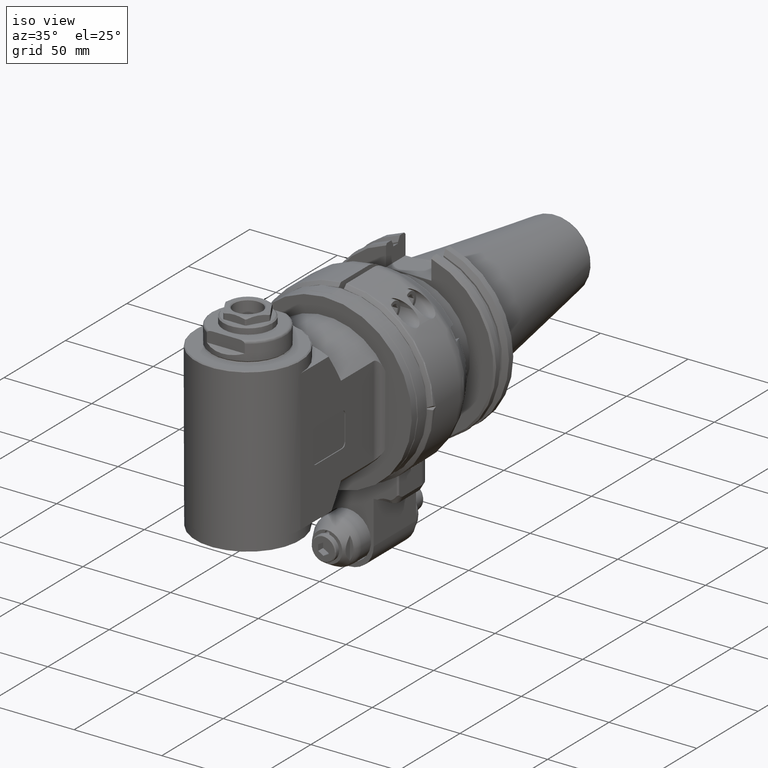
[diagram: clean part render]
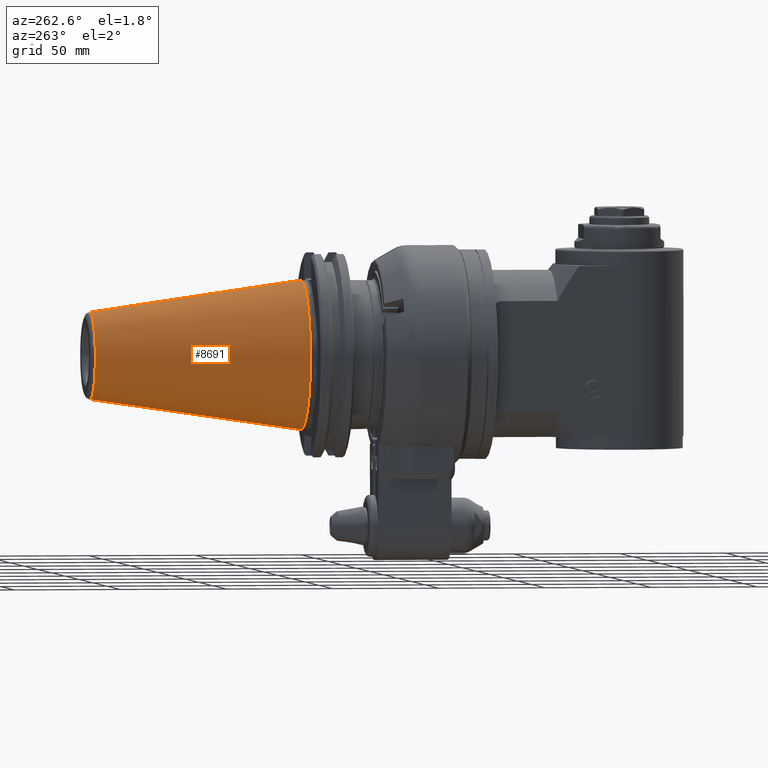
[diagram: tour spotlight — one face highlighted and labeled with its STEP entity id]
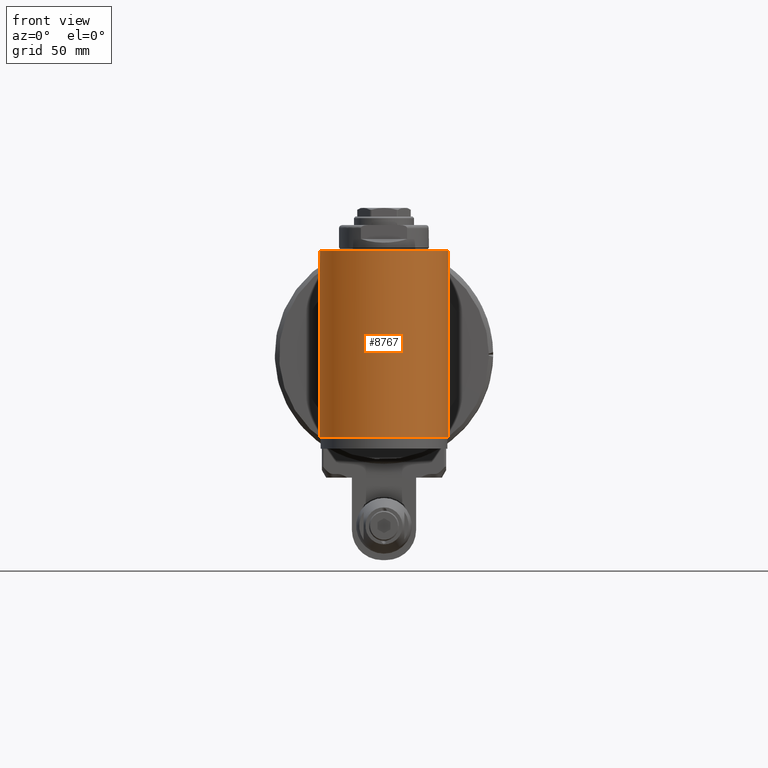
[diagram: tour spotlight — one face highlighted and labeled with its STEP entity id]
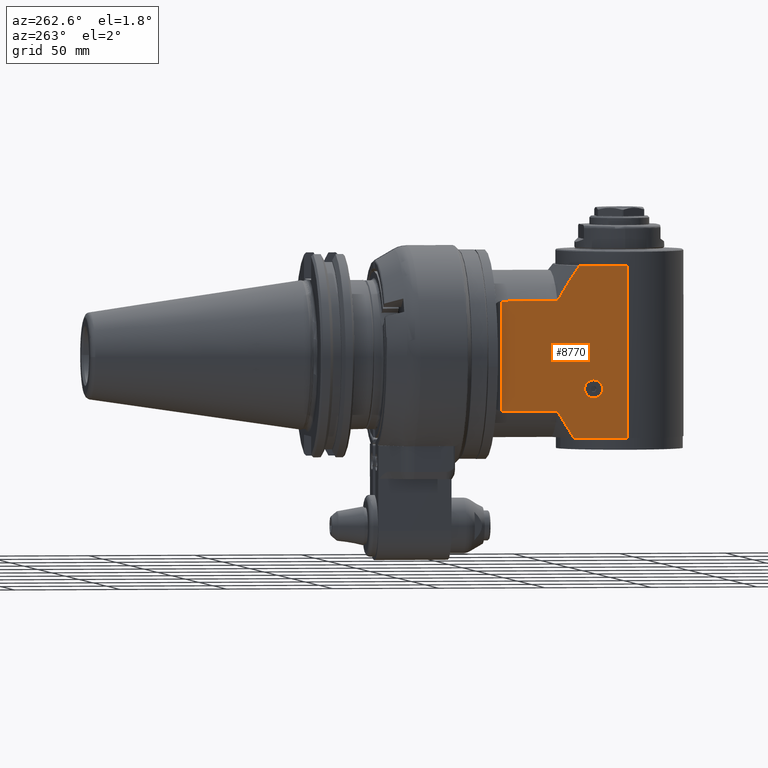
[diagram: tour spotlight — one face highlighted and labeled with its STEP entity id]
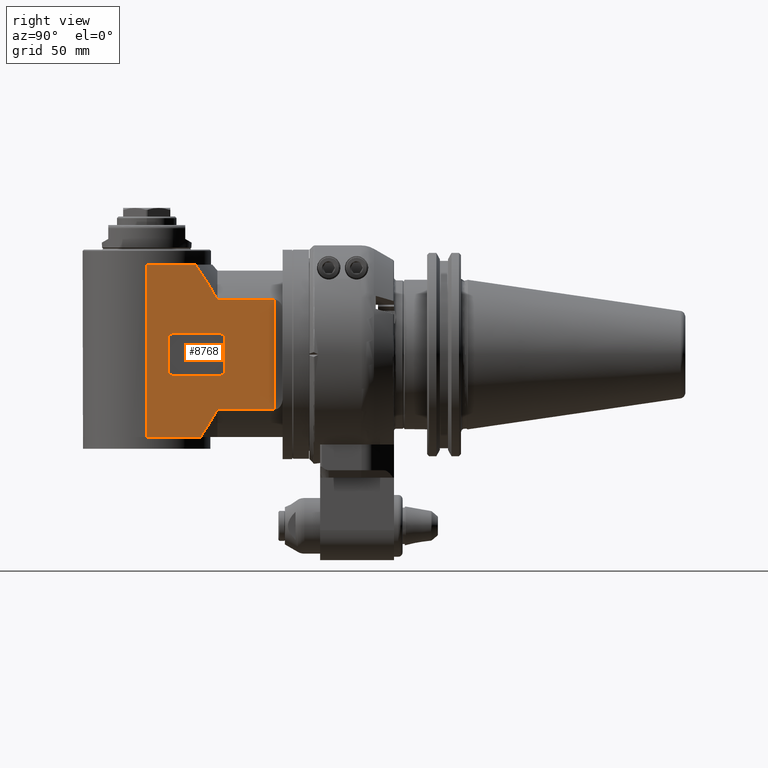
[diagram: tour spotlight — one face highlighted and labeled with its STEP entity id]
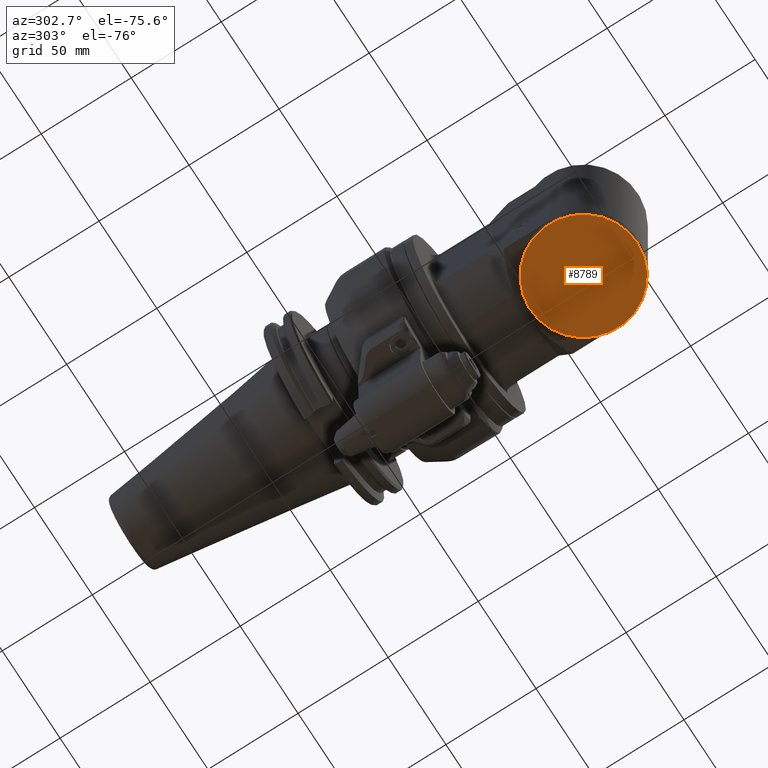
[diagram: tour spotlight — one face highlighted and labeled with its STEP entity id]
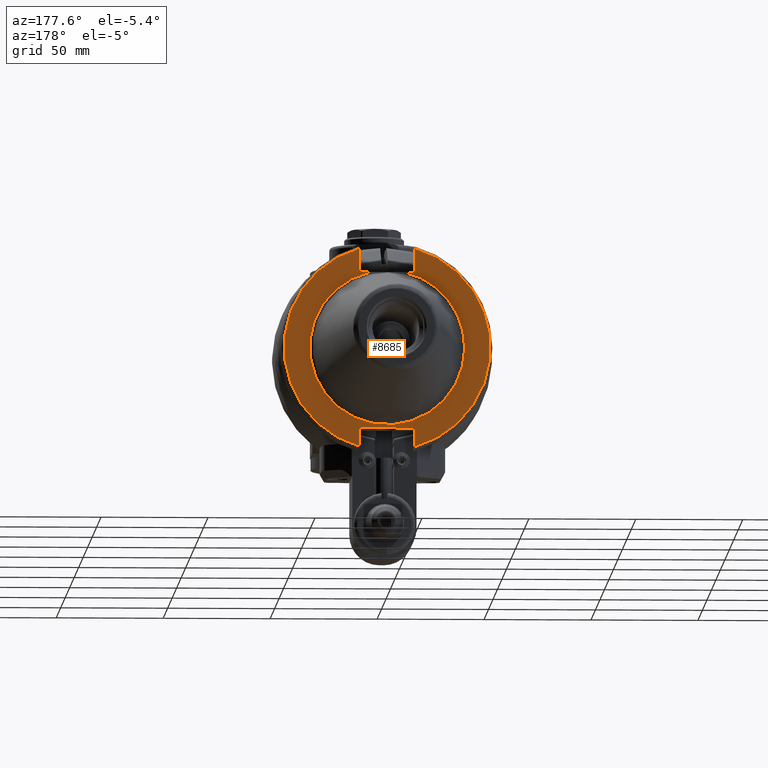
[diagram: tour spotlight — one face highlighted and labeled with its STEP entity id]
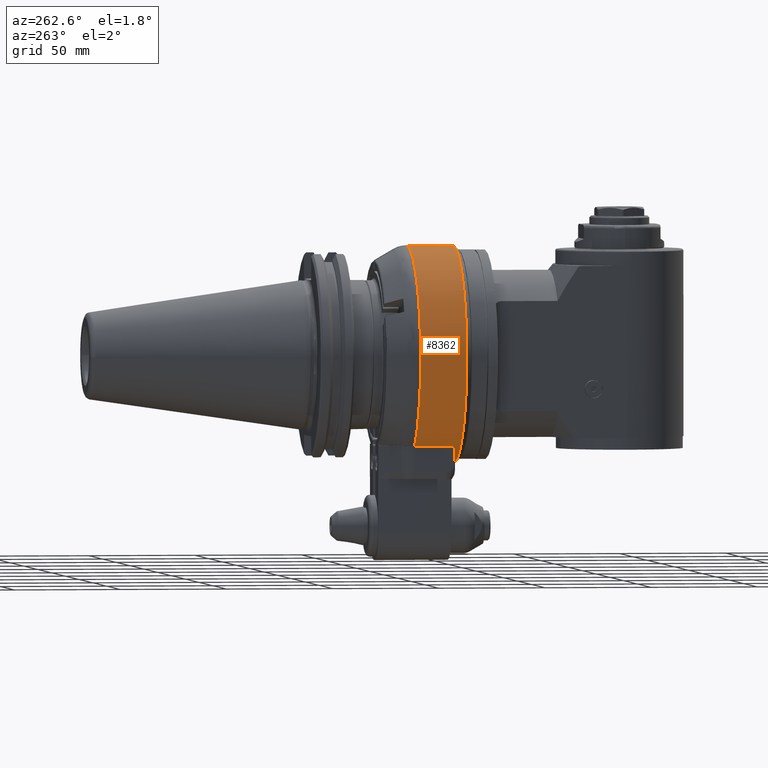
[diagram: tour spotlight — one face highlighted and labeled with its STEP entity id]
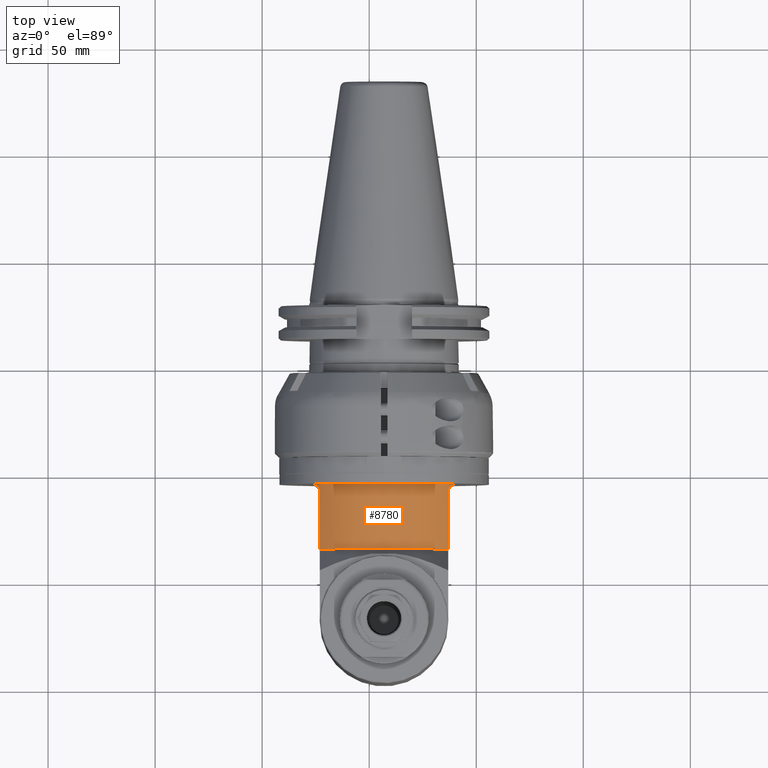
[diagram: tour spotlight — one face highlighted and labeled with its STEP entity id]
A machine part: a face-by-face anatomy tour. The part has 522 B-rep faces; the first image is the clean iso view, then the 8 largest visible faces are spotlighted one at a time (largest first), each with its STEP entity span.

Face 1 — auxiliary view, entity #8691. In plain terms, the highlighted conical surface has half-angle 8.297 deg.
Definition (entity closure, byte-faithful):
#259=CONICAL_SURFACE('',#9658,27.67265681028,0.144812411498922);
#733=LINE('',#16776,#1351);
#1351=VECTOR('',#11882,27.67265681028);
#2353=FACE_OUTER_BOUND('',#2929,.T.);
#2929=EDGE_LOOP('',(#7522,#7523,#7524,#7525,#7526,#7527));
#3491=CIRCLE('',#9656,34.925);
#3492=CIRCLE('',#9657,34.925);
#3493=CIRCLE('',#9659,20.42031362057);
#3494=CIRCLE('',#9660,20.42031362057);
#4231=VERTEX_POINT('',#16769);
#4232=VERTEX_POINT('',#16770);
#4233=VERTEX_POINT('',#16775);
#4234=VERTEX_POINT('',#16777);
#5376=EDGE_CURVE('',#4231,#4232,#3491,.T.);
#5378=EDGE_CURVE('',#4232,#4231,#3492,.T.);
#5379=EDGE_CURVE('',#4231,#4233,#733,.T.);
#5380=EDGE_CURVE('',#4234,#4233,#3493,.T.);
#5381=EDGE_CURVE('',#4233,#4234,#3494,.T.);
#7522=ORIENTED_EDGE('',*,*,#5376,.F.);
#7523=ORIENTED_EDGE('',*,*,#5379,.T.);
#7524=ORIENTED_EDGE('',*,*,#5380,.F.);
#7525=ORIENTED_EDGE('',*,*,#5381,.F.);
#7526=ORIENTED_EDGE('',*,*,#5379,.F.);
#7527=ORIENTED_EDGE('',*,*,#5378,.F.);
#8691=ADVANCED_FACE('',(#2353),#259,.T.);
#9656=AXIS2_PLACEMENT_3D('',#16771,#11875,#11876);
#9657=AXIS2_PLACEMENT_3D('',#16773,#11878,#11879);
#9658=AXIS2_PLACEMENT_3D('',#16774,#11880,#11881);
#9659=AXIS2_PLACEMENT_3D('',#16778,#11883,#11884);
#9660=AXIS2_PLACEMENT_3D('',#16779,#11885,#11886);
#11875=DIRECTION('center_axis',(0.,-1.,0.));
#11876=DIRECTION('ref_axis',(0.,0.,1.));
#11878=DIRECTION('center_axis',(0.,-1.,0.));
#11879=DIRECTION('ref_axis',(0.,0.,1.));
#11880=DIRECTION('center_axis',(0.,-1.,0.));
#11881=DIRECTION('ref_axis',(0.,0.,1.));
#11882=DIRECTION('',(-1.76724869581176E-17,0.98953299358046,0.144306807239621));
#11883=DIRECTION('center_axis',(0.,1.,0.));
#11884=DIRECTION('ref_axis',(0.,0.,1.));
#11885=DIRECTION('center_axis',(0.,1.,0.));
#11886=DIRECTION('ref_axis',(0.,0.,1.));
#16769=CARTESIAN_POINT('',(0.,74.,-34.925));
#16770=CARTESIAN_POINT('',(4.27707894602218E-15,73.9999999999999,34.9250000000004));
#16771=CARTESIAN_POINT('Origin',(0.,74.,0.));
#16773=CARTESIAN_POINT('Origin',(0.,74.,0.));
#16774=CARTESIAN_POINT('Origin',(0.,123.730383509,0.));
#16775=CARTESIAN_POINT('',(2.50076717129998E-15,173.460767018098,-20.4203136205566));
#16776=CARTESIAN_POINT('',(3.38892305866126E-15,123.730383509,-27.67265681028));
#16777=CARTESIAN_POINT('',(-20.42031362057,173.4607670181,-2.50076717130162E-15));
#16778=CARTESIAN_POINT('Origin',(0.,173.4607670181,0.));
#16779=CARTESIAN_POINT('Origin',(0.,173.4607670181,0.));

Face 2 — front view, entity #8767. In plain terms, the highlighted cylindrical surface (bore or boss wall) has radius 30 mm, axis along (0, -0, 1).
Definition (entity closure, byte-faithful):
#810=LINE('',#17431,#1428);
#811=LINE('',#17435,#1429);
#812=LINE('',#17439,#1430);
#1428=VECTOR('',#12197,30.);
#1429=VECTOR('',#12200,80.5);
#1430=VECTOR('',#12203,80.5);
#1642=CYLINDRICAL_SURFACE('',#9775,30.);
#2429=FACE_OUTER_BOUND('',#3011,.T.);
#3011=EDGE_LOOP('',(#7872,#7873,#7874,#7875,#7876,#7877,#7878,#7879,#7880));
#3533=CIRCLE('',#9776,30.);
#3534=CIRCLE('',#9777,30.);
#3535=CIRCLE('',#9778,30.);
#3536=CIRCLE('',#9779,30.);
#3537=CIRCLE('',#9780,30.);
#4312=VERTEX_POINT('',#17426);
#4313=VERTEX_POINT('',#17427);
#4314=VERTEX_POINT('',#17430);
#4315=VERTEX_POINT('',#17432);
#4316=VERTEX_POINT('',#17434);
#4317=VERTEX_POINT('',#17436);
#4318=VERTEX_POINT('',#17438);
#5520=EDGE_CURVE('',#4312,#4313,#3533,.T.);
#5521=EDGE_CURVE('',#4313,#4312,#3534,.T.);
#5522=EDGE_CURVE('',#4313,#4314,#810,.T.);
#5523=EDGE_CURVE('',#4315,#4314,#3535,.T.);
#5524=EDGE_CURVE('',#4316,#4315,#811,.T.);
#5525=EDGE_CURVE('',#4317,#4316,#3536,.T.);
#5526=EDGE_CURVE('',#4318,#4317,#812,.T.);
#5527=EDGE_CURVE('',#4314,#4318,#3537,.T.);
#7872=ORIENTED_EDGE('',*,*,#5520,.F.);
#7873=ORIENTED_EDGE('',*,*,#5521,.F.);
#7874=ORIENTED_EDGE('',*,*,#5522,.T.);
#7875=ORIENTED_EDGE('',*,*,#5523,.F.);
#7876=ORIENTED_EDGE('',*,*,#5524,.F.);
#7877=ORIENTED_EDGE('',*,*,#5525,.F.);
#7878=ORIENTED_EDGE('',*,*,#5526,.F.);
#7879=ORIENTED_EDGE('',*,*,#5527,.F.);
#7880=ORIENTED_EDGE('',*,*,#5522,.F.);
#8767=ADVANCED_FACE('',(#2429),#1642,.T.);
#9775=AXIS2_PLACEMENT_3D('',#17425,#12191,#12192);
#9776=AXIS2_PLACEMENT_3D('',#17428,#12193,#12194);
#9777=AXIS2_PLACEMENT_3D('',#17429,#12195,#12196);
#9778=AXIS2_PLACEMENT_3D('',#17433,#12198,#12199);
#9779=AXIS2_PLACEMENT_3D('',#17437,#12201,#12202);
#9780=AXIS2_PLACEMENT_3D('',#17440,#12204,#12205);
#12191=DIRECTION('center_axis',(1.,0.,0.));
#12192=DIRECTION('ref_axis',(0.,-1.,0.));
#12193=DIRECTION('center_axis',(1.,0.,0.));
#12194=DIRECTION('ref_axis',(0.,-0.500000000000017,-0.866025403784429));
#12195=DIRECTION('center_axis',(1.,0.,0.));
#12196=DIRECTION('ref_axis',(0.,-0.500000000000017,-0.866025403784429));
#12197=DIRECTION('',(-1.,0.,0.));
#12198=DIRECTION('center_axis',(-1.,0.,0.));
#12199=DIRECTION('ref_axis',(0.,5.104065318543E-14,1.));
#12200=DIRECTION('',(1.,0.,0.));
#12201=DIRECTION('center_axis',(-1.,0.,0.));
#12202=DIRECTION('ref_axis',(0.,0.,-1.));
#12203=DIRECTION('',(-1.,0.,0.));
#12204=DIRECTION('center_axis',(-1.,0.,0.));
#12205=DIRECTION('ref_axis',(0.,5.104065318543E-14,1.));
#17425=CARTESIAN_POINT('Origin',(0.,-23.,-1.136868377216E-13));
#17426=CARTESIAN_POINT('',(37.66004178792,-38.,-25.98076211353));
#17427=CARTESIAN_POINT('',(37.66004178792,7.,-1.10012897324158E-13));
#17428=CARTESIAN_POINT('Origin',(37.66004178792,-23.,-1.136868377216E-13));
#17429=CARTESIAN_POINT('Origin',(37.66004178792,-23.,-1.136868377216E-13));
#17430=CARTESIAN_POINT('',(31.16004178792,7.,-1.10012897324158E-13));
#17431=CARTESIAN_POINT('',(0.,7.,-1.10012897324158E-13));
#17432=CARTESIAN_POINT('',(31.16004178792,-23.,30.));
#17433=CARTESIAN_POINT('Origin',(31.16004178792,-23.,-1.136868377216E-13));
#17434=CARTESIAN_POINT('',(-49.33995821208,-23.,30.));
#17435=CARTESIAN_POINT('',(-49.33995821208,-23.,30.));
#17436=CARTESIAN_POINT('',(-49.33995821208,-23.,-30.));
#17437=CARTESIAN_POINT('Origin',(-49.33995821208,-23.,-1.136868377216E-13));
#17438=CARTESIAN_POINT('',(31.16004178792,-23.,-30.));
#17439=CARTESIAN_POINT('',(31.16004178792,-23.,-30.));
#17440=CARTESIAN_POINT('Origin',(31.16004178792,-23.,-1.136868377216E-13));

Face 3 — auxiliary view, entity #8770. In plain terms, the highlighted planar face has unit normal (1, 0, -0).
Definition (entity closure, byte-faithful):
#185=(
BOUNDED_CURVE()
B_SPLINE_CURVE(2,(#17483,#17484,#17485),.UNSPECIFIED.,.F.,.F.)
B_SPLINE_CURVE_WITH_KNOTS((3,3),(13.1968686512931,15.0285338596581),
 .UNSPECIFIED.)
CURVE()
GEOMETRIC_REPRESENTATION_ITEM()
RATIONAL_B_SPLINE_CURVE((1.58301614602027,1.4847826910311,1.34804919977888))
REPRESENTATION_ITEM('')
);
#186=(
BOUNDED_CURVE()
B_SPLINE_CURVE(2,(#17493,#17494,#17495),.UNSPECIFIED.,.F.,.F.)
B_SPLINE_CURVE_WITH_KNOTS((3,3),(-3.84982281623053,-2.34796476648751),
 .UNSPECIFIED.)
CURVE()
GEOMETRIC_REPRESENTATION_ITEM()
RATIONAL_B_SPLINE_CURVE((1.58301614602022,1.50247047399687,1.39604108041382))
REPRESENTATION_ITEM('')
);
#811=LINE('',#17435,#1429);
#822=LINE('',#17480,#1440);
#823=LINE('',#17487,#1441);
#824=LINE('',#17489,#1442);
#825=LINE('',#17491,#1443);
#826=LINE('',#17496,#1444);
#1429=VECTOR('',#12200,80.5);
#1440=VECTOR('',#12227,22.83518767845);
#1441=VECTOR('',#12230,26.5);
#1442=VECTOR('',#12231,51.39066063012);
#1443=VECTOR('',#12232,26.5);
#1444=VECTOR('',#12233,25.18941018295);
#1733=FACE_BOUND('',#3016,.T.);
#1961=PLANE('',#9787);
#2432=FACE_OUTER_BOUND('',#3015,.T.);
#3015=EDGE_LOOP('',(#7902,#7903,#7904,#7905,#7906,#7907,#7908,#7909));
#3016=EDGE_LOOP('',(#7910));
#3542=CIRCLE('',#9788,4.25);
#4315=VERTEX_POINT('',#17432);
#4316=VERTEX_POINT('',#17434);
#4333=VERTEX_POINT('',#17476);
#4334=VERTEX_POINT('',#17482);
#4335=VERTEX_POINT('',#17486);
#4336=VERTEX_POINT('',#17488);
#4337=VERTEX_POINT('',#17490);
#4338=VERTEX_POINT('',#17492);
#4339=VERTEX_POINT('',#17497);
#5524=EDGE_CURVE('',#4316,#4315,#811,.T.);
#5544=EDGE_CURVE('',#4315,#4333,#822,.T.);
#5545=EDGE_CURVE('',#4334,#4333,#185,.T.);
#5546=EDGE_CURVE('',#4335,#4334,#823,.T.);
#5547=EDGE_CURVE('',#4336,#4335,#824,.T.);
#5548=EDGE_CURVE('',#4337,#4336,#825,.T.);
#5549=EDGE_CURVE('',#4337,#4338,#186,.T.);
#5550=EDGE_CURVE('',#4316,#4338,#826,.T.);
#5551=EDGE_CURVE('',#4339,#4339,#3542,.T.);
#7902=ORIENTED_EDGE('',*,*,#5524,.T.);
#7903=ORIENTED_EDGE('',*,*,#5544,.T.);
#7904=ORIENTED_EDGE('',*,*,#5545,.F.);
#7905=ORIENTED_EDGE('',*,*,#5546,.F.);
#7906=ORIENTED_EDGE('',*,*,#5547,.F.);
#7907=ORIENTED_EDGE('',*,*,#5548,.F.);
#7908=ORIENTED_EDGE('',*,*,#5549,.T.);
#7909=ORIENTED_EDGE('',*,*,#5550,.F.);
#7910=ORIENTED_EDGE('',*,*,#5551,.T.);
#8770=ADVANCED_FACE('',(#2432,#1733),#1961,.F.);
#9787=AXIS2_PLACEMENT_3D('',#17481,#12228,#12229);
#9788=AXIS2_PLACEMENT_3D('',#17498,#12234,#12235);
#12200=DIRECTION('',(1.,0.,0.));
#12227=DIRECTION('',(0.,1.,0.));
#12228=DIRECTION('center_axis',(0.,0.,-1.));
#12229=DIRECTION('ref_axis',(0.,-1.,0.));
#12230=DIRECTION('',(0.,-1.,0.));
#12231=DIRECTION('',(1.,0.,0.));
#12232=DIRECTION('',(0.,1.,0.));
#12233=DIRECTION('',(0.,1.,0.));
#12234=DIRECTION('center_axis',(0.,0.,-1.));
#12235=DIRECTION('ref_axis',(1.,0.,0.));
#17432=CARTESIAN_POINT('',(31.16004178792,-23.,30.));
#17434=CARTESIAN_POINT('',(-49.33995821208,-23.,30.));
#17435=CARTESIAN_POINT('',(-49.33995821208,-23.,30.));
#17476=CARTESIAN_POINT('',(31.16004178792,-0.164812321552,30.));
#17480=CARTESIAN_POINT('',(31.16004178792,-23.,30.));
#17481=CARTESIAN_POINT('Origin',(-72.98996061208,-4.318245836552,30.));
#17482=CARTESIAN_POINT('',(14.85537210298,10.,30.));
#17483=CARTESIAN_POINT('Ctrl Pts',(14.8553721027819,10.0000000001096,30.));
#17484=CARTESIAN_POINT('Ctrl Pts',(21.9238225567032,6.14171008589091,30.));
#17485=CARTESIAN_POINT('Ctrl Pts',(31.1600417879129,-0.164812321545501,
30.));
#17486=CARTESIAN_POINT('',(14.85537210298,36.5,30.));
#17487=CARTESIAN_POINT('',(14.85537210298,36.5,30.));
#17488=CARTESIAN_POINT('',(-36.53528852714,36.5,30.));
#17489=CARTESIAN_POINT('',(-36.53528852714,36.5,30.));
#17490=CARTESIAN_POINT('',(-36.53528852714,10.,30.));
#17491=CARTESIAN_POINT('',(-36.53528852714,10.,30.));
#17492=CARTESIAN_POINT('',(-49.3399582120614,2.18941018313255,29.9999999996697));
#17493=CARTESIAN_POINT('Ctrl Pts',(-36.5352885269399,10.000000000106,30.));
#17494=CARTESIAN_POINT('Ctrl Pts',(-42.2627735005611,6.87367158461836,30.));
#17495=CARTESIAN_POINT('Ctrl Pts',(-49.3399582120243,2.18941018298573,30.));
#17496=CARTESIAN_POINT('',(-49.33995821208,-23.,30.));
#17497=CARTESIAN_POINT('',(-30.58995821208,-7.,30.));
#17498=CARTESIAN_POINT('Origin',(-26.33995821208,-7.,30.));

Face 4 — right view, entity #8768. In plain terms, the highlighted planar face has unit normal (-1, -0, 0).
Definition (entity closure, byte-faithful):
#182=(
BOUNDED_CURVE()
B_SPLINE_CURVE(2,(#17445,#17446,#17447),.UNSPECIFIED.,.F.,.F.)
B_SPLINE_CURVE_WITH_KNOTS((3,3),(13.1968686512931,14.6987267010382),
 .UNSPECIFIED.)
CURVE()
GEOMETRIC_REPRESENTATION_ITEM()
RATIONAL_B_SPLINE_CURVE((1.58301614602027,1.50247047399681,1.39604108041358))
REPRESENTATION_ITEM('')
);
#183=(
BOUNDED_CURVE()
B_SPLINE_CURVE(2,(#17455,#17456,#17457),.UNSPECIFIED.,.F.,.F.)
B_SPLINE_CURVE_WITH_KNOTS((3,3),(2.01815760786574,3.84982281623074),
 .UNSPECIFIED.)
CURVE()
GEOMETRIC_REPRESENTATION_ITEM()
RATIONAL_B_SPLINE_CURVE((1.34804919977888,1.4847826910311,1.58301614602027))
REPRESENTATION_ITEM('')
);
#812=LINE('',#17439,#1430);
#813=LINE('',#17443,#1431);
#814=LINE('',#17449,#1432);
#815=LINE('',#17451,#1433);
#816=LINE('',#17453,#1434);
#817=LINE('',#17458,#1435);
#818=LINE('',#17461,#1436);
#819=LINE('',#17465,#1437);
#820=LINE('',#17469,#1438);
#821=LINE('',#17473,#1439);
#1430=VECTOR('',#12203,80.5);
#1431=VECTOR('',#12208,25.18941018294);
#1432=VECTOR('',#12209,26.5);
#1433=VECTOR('',#12210,51.39066063012);
#1434=VECTOR('',#12211,26.5);
#1435=VECTOR('',#12212,22.83518767845);
#1436=VECTOR('',#12213,21.5);
#1437=VECTOR('',#12216,14.5);
#1438=VECTOR('',#12219,21.5);
#1439=VECTOR('',#12222,14.5);
#1732=FACE_BOUND('',#3013,.T.);
#1959=PLANE('',#9781);
#2430=FACE_OUTER_BOUND('',#3012,.T.);
#3012=EDGE_LOOP('',(#7881,#7882,#7883,#7884,#7885,#7886,#7887,#7888));
#3013=EDGE_LOOP('',(#7889,#7890,#7891,#7892,#7893,#7894,#7895,#7896));
#3538=CIRCLE('',#9782,2.5);
#3539=CIRCLE('',#9783,2.5);
#3540=CIRCLE('',#9784,2.5);
#3541=CIRCLE('',#9785,2.5);
#4317=VERTEX_POINT('',#17436);
#4318=VERTEX_POINT('',#17438);
#4319=VERTEX_POINT('',#17442);
#4320=VERTEX_POINT('',#17444);
#4321=VERTEX_POINT('',#17448);
#4322=VERTEX_POINT('',#17450);
#4323=VERTEX_POINT('',#17452);
#4324=VERTEX_POINT('',#17454);
#4325=VERTEX_POINT('',#17459);
#4326=VERTEX_POINT('',#17460);
#4327=VERTEX_POINT('',#17462);
#4328=VERTEX_POINT('',#17464);
#4329=VERTEX_POINT('',#17466);
#4330=VERTEX_POINT('',#17468);
#4331=VERTEX_POINT('',#17470);
#4332=VERTEX_POINT('',#17472);
#5526=EDGE_CURVE('',#4318,#4317,#812,.T.);
#5528=EDGE_CURVE('',#4319,#4317,#813,.T.);
#5529=EDGE_CURVE('',#4320,#4319,#182,.T.);
#5530=EDGE_CURVE('',#4321,#4320,#814,.T.);
#5531=EDGE_CURVE('',#4322,#4321,#815,.T.);
#5532=EDGE_CURVE('',#4323,#4322,#816,.T.);
#5533=EDGE_CURVE('',#4324,#4323,#183,.T.);
#5534=EDGE_CURVE('',#4318,#4324,#817,.T.);
#5535=EDGE_CURVE('',#4325,#4326,#818,.T.);
#5536=EDGE_CURVE('',#4326,#4327,#3538,.T.);
#5537=EDGE_CURVE('',#4327,#4328,#819,.T.);
#5538=EDGE_CURVE('',#4328,#4329,#3539,.T.);
#5539=EDGE_CURVE('',#4329,#4330,#820,.T.);
#5540=EDGE_CURVE('',#4330,#4331,#3540,.T.);
#5541=EDGE_CURVE('',#4331,#4332,#821,.T.);
#5542=EDGE_CURVE('',#4332,#4325,#3541,.T.);
#7881=ORIENTED_EDGE('',*,*,#5526,.T.);
#7882=ORIENTED_EDGE('',*,*,#5528,.F.);
#7883=ORIENTED_EDGE('',*,*,#5529,.F.);
#7884=ORIENTED_EDGE('',*,*,#5530,.F.);
#7885=ORIENTED_EDGE('',*,*,#5531,.F.);
#7886=ORIENTED_EDGE('',*,*,#5532,.F.);
#7887=ORIENTED_EDGE('',*,*,#5533,.F.);
#7888=ORIENTED_EDGE('',*,*,#5534,.F.);
#7889=ORIENTED_EDGE('',*,*,#5535,.T.);
#7890=ORIENTED_EDGE('',*,*,#5536,.T.);
#7891=ORIENTED_EDGE('',*,*,#5537,.T.);
#7892=ORIENTED_EDGE('',*,*,#5538,.T.);
#7893=ORIENTED_EDGE('',*,*,#5539,.T.);
#7894=ORIENTED_EDGE('',*,*,#5540,.T.);
#7895=ORIENTED_EDGE('',*,*,#5541,.T.);
#7896=ORIENTED_EDGE('',*,*,#5542,.T.);
#8768=ADVANCED_FACE('',(#2430,#1732),#1959,.F.);
#9781=AXIS2_PLACEMENT_3D('',#17441,#12206,#12207);
#9782=AXIS2_PLACEMENT_3D('',#17463,#12214,#12215);
#9783=AXIS2_PLACEMENT_3D('',#17467,#12217,#12218);
#9784=AXIS2_PLACEMENT_3D('',#17471,#12220,#12221);
#9785=AXIS2_PLACEMENT_3D('',#17474,#12223,#12224);
#12203=DIRECTION('',(-1.,0.,0.));
#12206=DIRECTION('center_axis',(0.,0.,1.));
#12207=DIRECTION('ref_axis',(0.,1.,0.));
#12208=DIRECTION('',(5.641598835382E-13,-1.,-1.008435791825E-13));
#12209=DIRECTION('',(0.,-1.,0.));
#12210=DIRECTION('',(-1.,0.,0.));
#12211=DIRECTION('',(0.,1.,0.));
#12212=DIRECTION('',(0.,1.,0.));
#12213=DIRECTION('',(0.,-1.,0.));
#12214=DIRECTION('center_axis',(0.,0.,1.));
#12215=DIRECTION('ref_axis',(-1.,0.,0.));
#12216=DIRECTION('',(1.,0.,0.));
#12217=DIRECTION('center_axis',(0.,0.,1.));
#12218=DIRECTION('ref_axis',(0.,-1.,0.));
#12219=DIRECTION('',(0.,1.,0.));
#12220=DIRECTION('center_axis',(0.,0.,1.));
#12221=DIRECTION('ref_axis',(1.,0.,0.));
#12222=DIRECTION('',(-1.,0.,0.));
#12223=DIRECTION('center_axis',(0.,0.,1.));
#12224=DIRECTION('ref_axis',(0.,1.,0.));
#17436=CARTESIAN_POINT('',(-49.33995821208,-23.,-30.));
#17438=CARTESIAN_POINT('',(31.16004178792,-23.,-30.));
#17439=CARTESIAN_POINT('',(31.16004178792,-23.,-30.));
#17441=CARTESIAN_POINT('Origin',(-72.98996061208,-61.31824583655,-30.));
#17442=CARTESIAN_POINT('',(-49.3399582121,2.189410182937,-30.));
#17443=CARTESIAN_POINT('',(-49.3399582121,2.189410182937,-30.));
#17444=CARTESIAN_POINT('',(-36.53528852714,10.,-30.));
#17445=CARTESIAN_POINT('Ctrl Pts',(-36.5352885269419,10.0000000001097,-30.));
#17446=CARTESIAN_POINT('Ctrl Pts',(-42.2627735005714,6.87367158461736,-30.));
#17447=CARTESIAN_POINT('Ctrl Pts',(-49.3399582120473,2.18941018297527,-30.));
#17448=CARTESIAN_POINT('',(-36.53528852714,36.5,-30.));
#17449=CARTESIAN_POINT('',(-36.53528852714,36.5,-30.));
#17450=CARTESIAN_POINT('',(14.85537210298,36.5,-30.));
#17451=CARTESIAN_POINT('',(14.85537210298,36.5,-30.));
#17452=CARTESIAN_POINT('',(14.85537210298,10.,-30.));
#17453=CARTESIAN_POINT('',(14.85537210298,10.,-30.));
#17454=CARTESIAN_POINT('',(31.16004178792,-0.164812321552,-30.));
#17455=CARTESIAN_POINT('Ctrl Pts',(31.1600417879129,-0.164812321545516,
-30.));
#17456=CARTESIAN_POINT('Ctrl Pts',(21.9238225567032,6.14171008589093,-30.));
#17457=CARTESIAN_POINT('Ctrl Pts',(14.8553721027819,10.0000000001096,-30.));
#17458=CARTESIAN_POINT('',(31.16004178792,-23.,-30.));
#17459=CARTESIAN_POINT('',(-20.58995821208,11.,-30.));
#17460=CARTESIAN_POINT('',(-20.58995821208,-10.5,-30.));
#17461=CARTESIAN_POINT('',(-20.58995821208,11.,-30.));
#17462=CARTESIAN_POINT('',(-18.08995821208,-13.,-30.));
#17463=CARTESIAN_POINT('Origin',(-18.08995821208,-10.5,-30.));
#17464=CARTESIAN_POINT('',(-3.589958212082,-13.,-30.));
#17465=CARTESIAN_POINT('',(-18.08995821208,-13.,-30.));
#17466=CARTESIAN_POINT('',(-1.089958212082,-10.5,-30.));
#17467=CARTESIAN_POINT('Origin',(-3.589958212082,-10.5,-30.));
#17468=CARTESIAN_POINT('',(-1.089958212082,11.,-30.));
#17469=CARTESIAN_POINT('',(-1.089958212082,-10.5,-30.));
#17470=CARTESIAN_POINT('',(-3.589958212082,13.5,-30.));
#17471=CARTESIAN_POINT('Origin',(-3.589958212082,11.,-30.));
#17472=CARTESIAN_POINT('',(-18.08995821208,13.5,-30.));
#17473=CARTESIAN_POINT('',(-3.589958212082,13.5,-30.));
#17474=CARTESIAN_POINT('Origin',(-18.08995821208,11.,-30.));

Face 5 — auxiliary view, entity #8789. In plain terms, the highlighted planar face has unit normal (0, -0, 1).
Definition (entity closure, byte-faithful):
#1967=PLANE('',#9822);
#2451=FACE_OUTER_BOUND('',#3039,.T.);
#3039=EDGE_LOOP('',(#7986));
#3557=CIRCLE('',#9821,29.75);
#4356=VERTEX_POINT('',#17610);
#5582=EDGE_CURVE('',#4356,#4356,#3557,.T.);
#7986=ORIENTED_EDGE('',*,*,#5582,.T.);
#8789=ADVANCED_FACE('',(#2451),#1967,.F.);
#9821=AXIS2_PLACEMENT_3D('',#17612,#12310,#12311);
#9822=AXIS2_PLACEMENT_3D('',#17613,#12312,#12313);
#12310=DIRECTION('center_axis',(-1.,0.,0.));
#12311=DIRECTION('ref_axis',(0.,-0.965925826289076,-0.258819045102493));
#12312=DIRECTION('center_axis',(1.,0.,0.));
#12313=DIRECTION('ref_axis',(0.,-0.965925826289076,-0.258819045102493));
#17610=CARTESIAN_POINT('',(-54.83995821208,5.7362933321,7.69986659179918));
#17612=CARTESIAN_POINT('Origin',(-54.83995821208,-23.,0.));
#17613=CARTESIAN_POINT('Origin',(-54.83995821208,-37.48888739434,-3.882285676538));

Face 6 — auxiliary view, entity #8685. In plain terms, the highlighted planar face has unit normal (0, -1, 0).
Definition (entity closure, byte-faithful):
#717=LINE('',#16685,#1335);
#724=LINE('',#16718,#1342);
#725=LINE('',#16720,#1343);
#726=LINE('',#16722,#1344);
#727=LINE('',#16724,#1345);
#728=LINE('',#16728,#1346);
#729=LINE('',#16730,#1347);
#1335=VECTOR('',#11808,11.14660497539);
#1342=VECTOR('',#11835,4.846164962211);
#1343=VECTOR('',#11836,8.733604975397);
#1344=VECTOR('',#11837,25.908);
#1345=VECTOR('',#11838,8.733604975394);
#1346=VECTOR('',#11841,11.14660497539);
#1347=VECTOR('',#11842,4.846164962211);
#1914=PLANE('',#9639);
#2347=FACE_OUTER_BOUND('',#2923,.T.);
#2923=EDGE_LOOP('',(#7480,#7481,#7482,#7483,#7484,#7485,#7486,#7487,#7488,
#7489,#7490));
#3478=CIRCLE('',#9637,48.225);
#3480=CIRCLE('',#9640,48.225);
#3481=CIRCLE('',#9641,36.225);
#3482=CIRCLE('',#9642,36.225);
#4206=VERTEX_POINT('',#16682);
#4207=VERTEX_POINT('',#16684);
#4216=VERTEX_POINT('',#16713);
#4217=VERTEX_POINT('',#16717);
#4218=VERTEX_POINT('',#16719);
#4219=VERTEX_POINT('',#16721);
#4220=VERTEX_POINT('',#16723);
#4221=VERTEX_POINT('',#16725);
#4222=VERTEX_POINT('',#16727);
#4223=VERTEX_POINT('',#16729);
#4224=VERTEX_POINT('',#16731);
#5341=EDGE_CURVE('',#4206,#4207,#717,.T.);
#5354=EDGE_CURVE('',#4206,#4216,#3478,.T.);
#5356=EDGE_CURVE('',#4217,#4207,#724,.T.);
#5357=EDGE_CURVE('',#4218,#4216,#725,.T.);
#5358=EDGE_CURVE('',#4218,#4219,#726,.T.);
#5359=EDGE_CURVE('',#4220,#4219,#727,.T.);
#5360=EDGE_CURVE('',#4220,#4221,#3480,.T.);
#5361=EDGE_CURVE('',#4222,#4221,#728,.T.);
#5362=EDGE_CURVE('',#4222,#4223,#729,.T.);
#5363=EDGE_CURVE('',#4223,#4224,#3481,.T.);
#5364=EDGE_CURVE('',#4224,#4217,#3482,.T.);
#7480=ORIENTED_EDGE('',*,*,#5356,.T.);
#7481=ORIENTED_EDGE('',*,*,#5341,.F.);
#7482=ORIENTED_EDGE('',*,*,#5354,.T.);
#7483=ORIENTED_EDGE('',*,*,#5357,.F.);
#7484=ORIENTED_EDGE('',*,*,#5358,.T.);
#7485=ORIENTED_EDGE('',*,*,#5359,.F.);
#7486=ORIENTED_EDGE('',*,*,#5360,.T.);
#7487=ORIENTED_EDGE('',*,*,#5361,.F.);
#7488=ORIENTED_EDGE('',*,*,#5362,.T.);
#7489=ORIENTED_EDGE('',*,*,#5363,.T.);
#7490=ORIENTED_EDGE('',*,*,#5364,.T.);
#8685=ADVANCED_FACE('',(#2347),#1914,.F.);
#9637=AXIS2_PLACEMENT_3D('',#16714,#11829,#11830);
#9639=AXIS2_PLACEMENT_3D('',#16716,#11833,#11834);
#9640=AXIS2_PLACEMENT_3D('',#16726,#11839,#11840);
#9641=AXIS2_PLACEMENT_3D('',#16732,#11843,#11844);
#9642=AXIS2_PLACEMENT_3D('',#16733,#11845,#11846);
#11808=DIRECTION('',(0.,0.,-1.));
#11829=DIRECTION('center_axis',(0.,1.,0.));
#11830=DIRECTION('ref_axis',(0.268615863141505,0.,0.963247381553017));
#11833=DIRECTION('center_axis',(0.,-1.,0.));
#11834=DIRECTION('ref_axis',(1.,0.,0.));
#11835=DIRECTION('',(1.,0.,0.));
#11836=DIRECTION('',(-7.973017820322E-14,0.,-1.));
#11837=DIRECTION('',(-1.,0.,0.));
#11838=DIRECTION('',(0.,0.,1.));
#11839=DIRECTION('center_axis',(0.,1.,0.));
#11840=DIRECTION('ref_axis',(-0.268615863141505,0.,-0.963247381553017));
#11841=DIRECTION('',(0.,0.,1.));
#11842=DIRECTION('',(1.,0.,0.));
#11843=DIRECTION('center_axis',(0.,-1.,0.));
#11844=DIRECTION('ref_axis',(1.,0.,0.));
#11845=DIRECTION('center_axis',(0.,-1.,0.));
#11846=DIRECTION('ref_axis',(1.,0.,0.));
#16682=CARTESIAN_POINT('',(12.954,70.825,46.45260497539));
#16684=CARTESIAN_POINT('',(12.954,70.825,35.306));
#16685=CARTESIAN_POINT('',(12.954,70.825,46.45260497539));
#16713=CARTESIAN_POINT('',(12.954,70.825,-46.4526049754));
#16714=CARTESIAN_POINT('Origin',(0.,70.825,0.));
#16716=CARTESIAN_POINT('Origin',(42.625,70.825,0.));
#16717=CARTESIAN_POINT('',(8.107835037789,70.825,35.306));
#16718=CARTESIAN_POINT('',(8.107835037789,70.825,35.306));
#16719=CARTESIAN_POINT('',(12.954,70.825,-37.719));
#16720=CARTESIAN_POINT('',(12.954,70.825,-37.719));
#16721=CARTESIAN_POINT('',(-12.954,70.825,-37.719));
#16722=CARTESIAN_POINT('',(12.954,70.825,-37.719));
#16723=CARTESIAN_POINT('',(-12.954,70.825,-46.45260497539));
#16724=CARTESIAN_POINT('',(-12.954,70.825,-46.45260497539));
#16725=CARTESIAN_POINT('',(-12.954,70.825,46.45260497539));
#16726=CARTESIAN_POINT('Origin',(0.,70.825,0.));
#16727=CARTESIAN_POINT('',(-12.954,70.825,35.306));
#16728=CARTESIAN_POINT('',(-12.954,70.825,35.306));
#16729=CARTESIAN_POINT('',(-8.107835037789,70.825,35.306));
#16730=CARTESIAN_POINT('',(-12.954,70.825,35.306));
#16731=CARTESIAN_POINT('',(-36.225,70.825,-4.43628302991129E-15));
#16732=CARTESIAN_POINT('Origin',(0.,70.825,0.));
#16733=CARTESIAN_POINT('Origin',(0.,70.825,0.));

Face 7 — auxiliary view, entity #8362. In plain terms, the highlighted cylindrical surface (partial cylindrical patch) has radius 51 mm, axis along (0, -1, 0).
Definition (entity closure, byte-faithful):
#32=ELLIPSE('',#9004,144.249783362042,51.);
#33=ELLIPSE('',#9005,144.249783362042,51.);
#52=B_SPLINE_CURVE_WITH_KNOTS('',3,(#12936,#12937,#12938,#12939,#12940,
#12941),.UNSPECIFIED.,.F.,.F.,(4,2,4),(-0.220144328878827,-0.201175489980687,
0.),.UNSPECIFIED.);
#53=B_SPLINE_CURVE_WITH_KNOTS('',3,(#12943,#12944,#12945,#12946,#12947,
#12948,#12949,#12950,#12951,#12952,#12953,#12954,#12955,#12956,#12957,#12958,
#12959,#12960,#12961,#12962,#12963,#12964,#12965,#12966,#12967,#12968),
 .UNSPECIFIED.,.F.,.F.,(4,2,2,2,2,2,2,2,2,2,2,2,4),(0.,0.201175489980687,
0.402350979961374,0.726790310303929,1.05122964064648,1.44743687444551,1.84364410824453,
2.06341028648597,2.1732933756067,2.28317646472742,2.39305955384814,2.50294264296886,
2.52975105249028),.UNSPECIFIED.);
#54=B_SPLINE_CURVE_WITH_KNOTS('',3,(#12984,#12985,#12986,#12987,#12988,
#12989,#12990,#12991,#12992,#12993,#12994,#12995,#12996,#12997,#12998,#12999,
#13000,#13001,#13002,#13003,#13004,#13005,#13006),.UNSPECIFIED.,.F.,.F.,
(4,2,2,2,2,3,2,2,2,2,4),(-1.23194682408093,-0.835739590281912,-0.439532356482891,
-0.219766178241446,-0.109883089120723,0.,0.0949450193758139,0.189890038751628,
0.520032016318137,0.865269466584616,1.2105069168511),.UNSPECIFIED.);
#55=B_SPLINE_CURVE_WITH_KNOTS('',3,(#13007,#13008,#13009,#13010,#13011,
#13012,#13013,#13014,#13015,#13016,#13017,#13018,#13019,#13020,#13021,#13022,
#13023,#13024),.UNSPECIFIED.,.F.,.F.,(4,2,2,2,2,2,2,2,4),(1.2105069168511,
1.53494624719365,1.8593855775362,2.06056106751689,2.26173655749758,2.46291204747827,
2.66408753745895,2.98852686780151,3.31296619814406),.UNSPECIFIED.);
#313=LINE('',#12923,#931);
#314=LINE('',#12925,#932);
#315=LINE('',#12930,#933);
#316=LINE('',#12932,#934);
#317=LINE('',#12972,#935);
#318=LINE('',#12981,#936);
#931=VECTOR('',#10142,18.52539489666);
#932=VECTOR('',#10143,0.6348591411299);
#933=VECTOR('',#10148,0.6348591411299);
#934=VECTOR('',#10149,18.52539489666);
#935=VECTOR('',#10154,21.74606856517);
#936=VECTOR('',#10163,21.74606325158);
#1537=CYLINDRICAL_SURFACE('',#8997,51.);
#1679=FACE_BOUND('',#2554,.T.);
#2024=FACE_OUTER_BOUND('',#2553,.T.);
#2553=EDGE_LOOP('',(#5868,#5869,#5870,#5871,#5872,#5873,#5874,#5875,#5876,
#5877,#5878,#5879,#5880,#5881,#5882,#5883,#5884,#5885));
#2554=EDGE_LOOP('',(#5886,#5887));
#3174=CIRCLE('',#8994,51.);
#3177=CIRCLE('',#8998,51.);
#3178=CIRCLE('',#8999,51.);
#3179=CIRCLE('',#9000,51.);
#3180=CIRCLE('',#9001,51.);
#3181=CIRCLE('',#9002,51.);
#3182=CIRCLE('',#9003,51.);
#3183=CIRCLE('',#9006,51.);
#3661=VERTEX_POINT('',#12798);
#3662=VERTEX_POINT('',#12799);
#3677=VERTEX_POINT('',#12919);
#3678=VERTEX_POINT('',#12920);
#3679=VERTEX_POINT('',#12922);
#3680=VERTEX_POINT('',#12924);
#3681=VERTEX_POINT('',#12927);
#3682=VERTEX_POINT('',#12929);
#3683=VERTEX_POINT('',#12931);
#3684=VERTEX_POINT('',#12933);
#3685=VERTEX_POINT('',#12935);
#3686=VERTEX_POINT('',#12942);
#3687=VERTEX_POINT('',#12969);
#3688=VERTEX_POINT('',#12971);
#3689=VERTEX_POINT('',#12973);
#3690=VERTEX_POINT('',#12975);
#3691=VERTEX_POINT('',#12977);
#3692=VERTEX_POINT('',#12979);
#3693=VERTEX_POINT('',#12982);
#3694=VERTEX_POINT('',#12983);
#4517=EDGE_CURVE('',#3661,#3662,#3174,.T.);
#4533=EDGE_CURVE('',#3677,#3678,#3177,.T.);
#4534=EDGE_CURVE('',#3677,#3679,#313,.T.);
#4535=EDGE_CURVE('',#3679,#3680,#314,.T.);
#4536=EDGE_CURVE('',#3662,#3680,#3178,.T.);
#4537=EDGE_CURVE('',#3681,#3661,#3179,.T.);
#4538=EDGE_CURVE('',#3681,#3682,#315,.T.);
#4539=EDGE_CURVE('',#3683,#3682,#316,.T.);
#4540=EDGE_CURVE('',#3684,#3683,#3180,.T.);
#4541=EDGE_CURVE('',#3684,#3685,#52,.T.);
#4542=EDGE_CURVE('',#3685,#3686,#53,.T.);
#4543=EDGE_CURVE('',#3687,#3686,#3181,.T.);
#4544=EDGE_CURVE('',#3687,#3688,#317,.T.);
#4545=EDGE_CURVE('',#3689,#3688,#3182,.T.);
#4546=EDGE_CURVE('',#3690,#3689,#32,.T.);
#4547=EDGE_CURVE('',#3691,#3690,#33,.T.);
#4548=EDGE_CURVE('',#3692,#3691,#3183,.T.);
#4549=EDGE_CURVE('',#3692,#3678,#318,.T.);
#4550=EDGE_CURVE('',#3693,#3694,#54,.T.);
#4551=EDGE_CURVE('',#3694,#3693,#55,.T.);
#5868=ORIENTED_EDGE('',*,*,#4533,.F.);
#5869=ORIENTED_EDGE('',*,*,#4534,.T.);
#5870=ORIENTED_EDGE('',*,*,#4535,.T.);
#5871=ORIENTED_EDGE('',*,*,#4536,.F.);
#5872=ORIENTED_EDGE('',*,*,#4517,.F.);
#5873=ORIENTED_EDGE('',*,*,#4537,.F.);
#5874=ORIENTED_EDGE('',*,*,#4538,.T.);
#5875=ORIENTED_EDGE('',*,*,#4539,.F.);
#5876=ORIENTED_EDGE('',*,*,#4540,.F.);
#5877=ORIENTED_EDGE('',*,*,#4541,.T.);
#5878=ORIENTED_EDGE('',*,*,#4542,.T.);
#5879=ORIENTED_EDGE('',*,*,#4543,.F.);
#5880=ORIENTED_EDGE('',*,*,#4544,.T.);
#5881=ORIENTED_EDGE('',*,*,#4545,.F.);
#5882=ORIENTED_EDGE('',*,*,#4546,.F.);
#5883=ORIENTED_EDGE('',*,*,#4547,.F.);
#5884=ORIENTED_EDGE('',*,*,#4548,.F.);
#5885=ORIENTED_EDGE('',*,*,#4549,.T.);
#5886=ORIENTED_EDGE('',*,*,#4550,.T.);
#5887=ORIENTED_EDGE('',*,*,#4551,.T.);
#8362=ADVANCED_FACE('',(#2024,#1679),#1537,.T.);
#8994=AXIS2_PLACEMENT_3D('',#12800,#10123,#10124);
#8997=AXIS2_PLACEMENT_3D('',#12918,#10138,#10139);
#8998=AXIS2_PLACEMENT_3D('',#12921,#10140,#10141);
#8999=AXIS2_PLACEMENT_3D('',#12926,#10144,#10145);
#9000=AXIS2_PLACEMENT_3D('',#12928,#10146,#10147);
#9001=AXIS2_PLACEMENT_3D('',#12934,#10150,#10151);
#9002=AXIS2_PLACEMENT_3D('',#12970,#10152,#10153);
#9003=AXIS2_PLACEMENT_3D('',#12974,#10155,#10156);
#9004=AXIS2_PLACEMENT_3D('',#12976,#10157,#10158);
#9005=AXIS2_PLACEMENT_3D('',#12978,#10159,#10160);
#9006=AXIS2_PLACEMENT_3D('',#12980,#10161,#10162);
#10123=DIRECTION('center_axis',(0.,1.,0.));
#10124=DIRECTION('ref_axis',(0.54901960784313,0.,-0.835809470037146));
#10138=DIRECTION('center_axis',(0.,-1.,0.));
#10139=DIRECTION('ref_axis',(1.4663902280623E-10,0.,-1.));
#10140=DIRECTION('center_axis',(0.,1.,0.));
#10141=DIRECTION('ref_axis',(-0.567273574176089,0.,-0.823529411764684));
#10142=DIRECTION('',(-5.062868653732E-14,-1.,3.451955900272E-14));
#10143=DIRECTION('',(1.119213207666E-14,-1.,1.119213207666E-14));
#10144=DIRECTION('center_axis',(0.,1.,0.));
#10145=DIRECTION('ref_axis',(-0.54901960784313,0.,-0.835809470037146));
#10146=DIRECTION('center_axis',(0.,1.,0.));
#10147=DIRECTION('ref_axis',(0.567273574176089,0.,-0.823529411764684));
#10148=DIRECTION('',(7.27488584983E-14,1.,2.238426415332E-14));
#10149=DIRECTION('',(5.062868653732E-14,-1.,3.451955900272E-14));
#10150=DIRECTION('center_axis',(0.,1.,0.));
#10151=DIRECTION('ref_axis',(0.719066469693323,0.,0.694941301235422));
#10152=DIRECTION('center_axis',(0.,1.,0.));
#10153=DIRECTION('ref_axis',(0.0294117647058804,0.,0.999567380468613));
#10154=DIRECTION('',(1.273469652131E-9,-1.,-3.747115976057E-11));
#10155=DIRECTION('center_axis',(0.,-1.,0.));
#10156=DIRECTION('ref_axis',(0.999826388474475,0.,0.0186331132687895));
#10157=DIRECTION('center_axis',(0.612372435695813,-0.353553390593307,-0.707106781186515));
#10158=DIRECTION('ref_axis',(-0.23145502494317,-0.935414346693472,0.267261241912441));
#10159=DIRECTION('center_axis',(0.612372435695813,-0.353553390593307,0.707106781186515));
#10160=DIRECTION('ref_axis',(0.23145502494317,0.935414346693472,0.267261241912441));
#10161=DIRECTION('center_axis',(0.,-1.,0.));
#10162=DIRECTION('ref_axis',(0.,0.,-1.));
#10163=DIRECTION('',(4.970251645951E-10,1.,1.462479987387E-11));
#12798=CARTESIAN_POINT('',(28.,5.,-42.62628297189));
#12799=CARTESIAN_POINT('',(-28.,5.,-42.62628297189));
#12800=CARTESIAN_POINT('Origin',(0.,5.,0.));
#12918=CARTESIAN_POINT('Origin',(0.,31.,0.));
#12919=CARTESIAN_POINT('',(-28.93095228298,24.16025403779,-42.));
#12920=CARTESIAN_POINT('',(-1.49999998023586,24.1602540482335,50.9779364044794));
#12921=CARTESIAN_POINT('Origin',(0.,24.16025403784,0.));
#12922=CARTESIAN_POINT('',(-28.93095228298,5.63485914113,-42.));
#12923=CARTESIAN_POINT('',(-28.93095228298,24.16025403779,-42.));
#12924=CARTESIAN_POINT('',(-28.93095228298,5.,-42.));
#12925=CARTESIAN_POINT('',(-28.93095228298,5.63485914113,-42.));
#12926=CARTESIAN_POINT('Origin',(0.,5.,0.));
#12927=CARTESIAN_POINT('',(28.93095228298,5.,-42.));
#12928=CARTESIAN_POINT('Origin',(0.,5.,0.));
#12929=CARTESIAN_POINT('',(28.93095228298,5.63485914113,-42.));
#12930=CARTESIAN_POINT('',(28.93095228298,5.,-42.));
#12931=CARTESIAN_POINT('',(28.93095228298,24.16025403779,-42.));
#12932=CARTESIAN_POINT('',(28.93095228298,24.16025403779,-42.));
#12933=CARTESIAN_POINT('',(36.67238995435,24.1602540379,35.44200636301));
#12934=CARTESIAN_POINT('Origin',(0.,24.16025403784,0.));
#12935=CARTESIAN_POINT('',(37.094473715245,22.,35.0000002827));
#12936=CARTESIAN_POINT('Ctrl Pts',(36.6723899543635,24.1602540379089,35.4420063630023));
#12937=CARTESIAN_POINT('Ctrl Pts',(36.6960098703003,24.1030307589439,35.4175664721268));
#12938=CARTESIAN_POINT('Ctrl Pts',(36.7187524665202,24.0451285760537,35.3939854762379));
#12939=CARTESIAN_POINT('Ctrl Pts',(36.9720249281091,23.365962882206,35.1309085087689));
#12940=CARTESIAN_POINT('Ctrl Pts',(37.094473715245,22.6705849666023,35.0000002827));
#12941=CARTESIAN_POINT('Ctrl Pts',(37.094473715245,22.,35.0000002827));
#12942=CARTESIAN_POINT('',(22.92311419183,24.16025403784,45.55799420242));
#12943=CARTESIAN_POINT('Ctrl Pts',(37.094473715245,22.,35.0000002827));
#12944=CARTESIAN_POINT('Ctrl Pts',(37.094473715245,21.3294150333977,35.0000002827));
#12945=CARTESIAN_POINT('Ctrl Pts',(36.9720249281091,20.634037117794,35.1309085087689));
#12946=CARTESIAN_POINT('Ctrl Pts',(36.509126684777,19.3927469884163,35.611726144206));
#12947=CARTESIAN_POINT('Ctrl Pts',(36.1687494919773,18.8460087579151,35.9595700839234));
#12948=CARTESIAN_POINT('Ctrl Pts',(35.2033968586434,17.735791859391,36.9109847334653));
#12949=CARTESIAN_POINT('Ctrl Pts',(34.4409934800641,17.2408985110096,37.6305186458188));
#12950=CARTESIAN_POINT('Ctrl Pts',(32.7670730175023,16.6228361137413,39.0967633186736));
#12951=CARTESIAN_POINT('Ctrl Pts',(31.8547771083538,16.5,39.8427250661917));
#12952=CARTESIAN_POINT('Ctrl Pts',(29.9471832487812,16.5,41.3026686740521));
#12953=CARTESIAN_POINT('Ctrl Pts',(28.778013547493,16.6813594560049,42.1275628033903));
#12954=CARTESIAN_POINT('Ctrl Pts',(26.456979520871,17.3971650946717,43.6226298537565));
#12955=CARTESIAN_POINT('Ctrl Pts',(25.3037695427295,17.923954492565,44.2943690865695));
#12956=CARTESIAN_POINT('Ctrl Pts',(23.7624895598246,18.9924338611569,45.1302050030023));
#12957=CARTESIAN_POINT('Ctrl Pts',(23.1928172782629,19.474810450432,45.4238805293447));
#12958=CARTESIAN_POINT('Ctrl Pts',(22.5411184273514,20.3289480905375,45.7488459255632));
#12959=CARTESIAN_POINT('Ctrl Pts',(22.3578474169696,20.6350884897769,45.8382767855729));
#12960=CARTESIAN_POINT('Ctrl Pts',(22.0986788135919,21.2875037271628,45.9637780827712));
#12961=CARTESIAN_POINT('Ctrl Pts',(22.0227149550549,21.6337230362643,46.0000002827));
#12962=CARTESIAN_POINT('Ctrl Pts',(22.0227149550549,22.3662769637357,46.0000002827));
#12963=CARTESIAN_POINT('Ctrl Pts',(22.0986788135919,22.7124962728372,45.9637780827712));
#12964=CARTESIAN_POINT('Ctrl Pts',(22.3578474169696,23.3649115102231,45.8382767855729));
#12965=CARTESIAN_POINT('Ctrl Pts',(22.5411184273514,23.6710519094625,45.7488459255632));
#12966=CARTESIAN_POINT('Ctrl Pts',(22.8113501597235,24.0252263780027,45.6140966286168));
#12967=CARTESIAN_POINT('Ctrl Pts',(22.866366168842,24.0933991389679,45.5865477292858));
#12968=CARTESIAN_POINT('Ctrl Pts',(22.9231141918306,24.1602540378421,45.5579942024262));
#12969=CARTESIAN_POINT('',(1.49999997309681,24.16025403784,50.9779364046901));
#12970=CARTESIAN_POINT('Origin',(0.,24.16025403784,0.));
#12971=CARTESIAN_POINT('',(1.49999998660699,2.41421355535176,50.9779364042926));
#12972=CARTESIAN_POINT('',(1.499999945521,24.16027520978,50.9779364055));
#12973=CARTESIAN_POINT('',(50.9911458122,2.414213562364,0.9502887767138));
#12974=CARTESIAN_POINT('Origin',(0.,2.414213562373,0.));
#12975=CARTESIAN_POINT('',(51.,4.330127018922,0.));
#12976=CARTESIAN_POINT('Origin',(0.,-84.0044641670873,0.));
#12977=CARTESIAN_POINT('',(50.9911458122,2.414213562368,-0.9502887767115));
#12978=CARTESIAN_POINT('Origin',(0.,-84.0044641670895,0.));
#12979=CARTESIAN_POINT('',(-1.49999998564002,2.41421355484646,50.9779364043204));
#12980=CARTESIAN_POINT('Origin',(0.,2.414213562373,0.));
#12981=CARTESIAN_POINT('',(-1.49999997128,2.414206146768,50.97793640474));
#12982=CARTESIAN_POINT('',(30.99596711028,3.5,40.5000002827));
#12983=CARTESIAN_POINT('',(30.9959671102758,14.5,40.5000002827));
#12984=CARTESIAN_POINT('Ctrl Pts',(30.9959671102758,3.5,40.5000002827));
#12985=CARTESIAN_POINT('Ctrl Pts',(29.9471832487812,3.5,41.3026686740522));
#12986=CARTESIAN_POINT('Ctrl Pts',(28.778013547493,3.68135945600489,42.1275628033903));
#12987=CARTESIAN_POINT('Ctrl Pts',(26.456979520871,4.39716509467172,43.6226298537565));
#12988=CARTESIAN_POINT('Ctrl Pts',(25.3037695427295,4.92395449256504,44.2943690865695));
#12989=CARTESIAN_POINT('Ctrl Pts',(23.7624895598246,5.99243386115686,45.1302050030023));
#12990=CARTESIAN_POINT('Ctrl Pts',(23.1928172782629,6.47481045043199,45.4238805293447));
#12991=CARTESIAN_POINT('Ctrl Pts',(22.5411184273514,7.32894809053752,45.7488459255632));
#12992=CARTESIAN_POINT('Ctrl Pts',(22.3578474169696,7.63508848977688,45.8382767855729));
#12993=CARTESIAN_POINT('Ctrl Pts',(22.0986788135919,8.28750372716278,45.9637780827712));
#12994=CARTESIAN_POINT('Ctrl Pts',(22.0227149550549,8.63372303626426,46.0000002827));
#12995=CARTESIAN_POINT('Ctrl Pts',(22.0227149550549,9.,46.0000002827));
#12996=CARTESIAN_POINT('Ctrl Pts',(22.0227149550549,9.31648339791938,46.0000002827));
#12997=CARTESIAN_POINT('Ctrl Pts',(22.0845156868871,9.6517064771444,45.9705414133334));
#12998=CARTESIAN_POINT('Ctrl Pts',(22.3158805898878,10.2791236415987,45.8586740383155));
#12999=CARTESIAN_POINT('Ctrl Pts',(22.483313327636,10.5722426936705,45.7770585076701));
#13000=CARTESIAN_POINT('Ctrl Pts',(23.2699641340394,11.6843353101904,45.3869345691662));
#13001=CARTESIAN_POINT('Ctrl Pts',(24.2526245503324,12.4029598465647,44.8752150291874));
#13002=CARTESIAN_POINT('Ctrl Pts',(26.0105214218574,13.3974425277095,43.8807323480425));
#13003=CARTESIAN_POINT('Ctrl Pts',(27.0277734960808,13.8085612622241,43.2664368855585));
#13004=CARTESIAN_POINT('Ctrl Pts',(29.06345429342,14.3611168342614,41.9261341817965));
#13005=CARTESIAN_POINT('Ctrl Pts',(30.0821032649561,14.5,41.1994099986278));
#13006=CARTESIAN_POINT('Ctrl Pts',(30.9959671102758,14.5,40.5000002827));
#13007=CARTESIAN_POINT('Ctrl Pts',(30.9959671102758,14.5,40.5000002827));
#13008=CARTESIAN_POINT('Ctrl Pts',(31.8547771083537,14.5,39.8427250661917));
#13009=CARTESIAN_POINT('Ctrl Pts',(32.7670730175023,14.3771638862587,39.0967633186736));
#13010=CARTESIAN_POINT('Ctrl Pts',(34.4409934800641,13.7591014889904,37.6305186458188));
#13011=CARTESIAN_POINT('Ctrl Pts',(35.2033968586434,13.264208140609,36.9109847334653));
#13012=CARTESIAN_POINT('Ctrl Pts',(36.1687494919773,12.1539912420849,35.9595700839234));
#13013=CARTESIAN_POINT('Ctrl Pts',(36.509126684777,11.6072530115837,35.611726144206));
#13014=CARTESIAN_POINT('Ctrl Pts',(36.9720249281091,10.365962882206,35.1309085087689));
#13015=CARTESIAN_POINT('Ctrl Pts',(37.094473715245,9.67058496660229,35.0000002827));
#13016=CARTESIAN_POINT('Ctrl Pts',(37.094473715245,8.32941503339771,35.0000002827));
#13017=CARTESIAN_POINT('Ctrl Pts',(36.9720249281091,7.63403711779401,35.1309085087689));
#13018=CARTESIAN_POINT('Ctrl Pts',(36.509126684777,6.3927469884163,35.611726144206));
#13019=CARTESIAN_POINT('Ctrl Pts',(36.1687494919773,5.84600875791506,35.9595700839234));
#13020=CARTESIAN_POINT('Ctrl Pts',(35.2033968586434,4.73579185939096,36.9109847334653));
#13021=CARTESIAN_POINT('Ctrl Pts',(34.4409934800641,4.2408985110096,37.6305186458188));
#13022=CARTESIAN_POINT('Ctrl Pts',(32.7670730175023,3.6228361137413,39.0967633186736));
#13023=CARTESIAN_POINT('Ctrl Pts',(31.8547771083537,3.5,39.8427250661917));
#13024=CARTESIAN_POINT('Ctrl Pts',(30.9959671102758,3.5,40.5000002827));

Face 8 — top view, entity #8780. In plain terms, the highlighted cylindrical surface (partial cylindrical patch) has radius 39.5 mm, axis along (-0, 1, 0).
Definition (entity closure, byte-faithful):
#154=B_SPLINE_CURVE_WITH_KNOTS('',3,(#17551,#17552,#17553,#17554,#17555,
#17556,#17557,#17558,#17559,#17560,#17561,#17562),.UNSPECIFIED.,.F.,.F.,
(4,2,2,2,2,4),(1.93050828222532,2.00304267815854,2.07557707409176,2.2206458659582,
2.49658064397712,2.77251542199604),.UNSPECIFIED.);
#155=B_SPLINE_CURVE_WITH_KNOTS('',3,(#17564,#17565,#17566,#17567,#17568,
#17569,#17570,#17571,#17572,#17573,#17574,#17575),.UNSPECIFIED.,.F.,.F.,
(4,2,2,2,2,4),(1.08850114245451,1.36443592047346,1.64037069849241,1.78543949035887,
1.85797388629209,1.93050828222532),.UNSPECIFIED.);
#816=LINE('',#17453,#1434);
#823=LINE('',#17487,#1441);
#1434=VECTOR('',#12211,26.5);
#1441=VECTOR('',#12230,26.5);
#1646=CYLINDRICAL_SURFACE('',#9809,39.5);
#2442=FACE_OUTER_BOUND('',#3030,.T.);
#3030=EDGE_LOOP('',(#7948,#7949,#7950,#7951,#7952,#7953));
#3545=CIRCLE('',#9793,39.5);
#3554=CIRCLE('',#9810,39.5);
#4322=VERTEX_POINT('',#17450);
#4323=VERTEX_POINT('',#17452);
#4334=VERTEX_POINT('',#17482);
#4335=VERTEX_POINT('',#17486);
#4346=VERTEX_POINT('',#17518);
#4347=VERTEX_POINT('',#17519);
#5532=EDGE_CURVE('',#4323,#4322,#816,.T.);
#5546=EDGE_CURVE('',#4335,#4334,#823,.T.);
#5559=EDGE_CURVE('',#4346,#4347,#3545,.T.);
#5574=EDGE_CURVE('',#4335,#4346,#154,.T.);
#5575=EDGE_CURVE('',#4323,#4334,#3554,.T.);
#5576=EDGE_CURVE('',#4347,#4322,#155,.T.);
#7948=ORIENTED_EDGE('',*,*,#5559,.F.);
#7949=ORIENTED_EDGE('',*,*,#5574,.F.);
#7950=ORIENTED_EDGE('',*,*,#5546,.T.);
#7951=ORIENTED_EDGE('',*,*,#5575,.F.);
#7952=ORIENTED_EDGE('',*,*,#5532,.T.);
#7953=ORIENTED_EDGE('',*,*,#5576,.F.);
#8780=ADVANCED_FACE('',(#2442),#1646,.T.);
#9793=AXIS2_PLACEMENT_3D('',#17520,#12247,#12248);
#9809=AXIS2_PLACEMENT_3D('',#17550,#12285,#12286);
#9810=AXIS2_PLACEMENT_3D('',#17563,#12287,#12288);
#12211=DIRECTION('',(0.,1.,0.));
#12230=DIRECTION('',(0.,-1.,0.));
#12247=DIRECTION('center_axis',(0.,1.,0.));
#12248=DIRECTION('ref_axis',(0.509011880072991,0.,0.860759493670885));
#12285=DIRECTION('center_axis',(0.,1.,0.));
#12286=DIRECTION('ref_axis',(1.,0.,0.));
#12287=DIRECTION('center_axis',(0.,-1.,0.));
#12288=DIRECTION('ref_axis',(1.,0.,0.));
#17450=CARTESIAN_POINT('',(14.85537210298,36.5,-30.));
#17452=CARTESIAN_POINT('',(14.85537210298,10.,-30.));
#17453=CARTESIAN_POINT('',(14.85537210298,10.,-30.));
#17482=CARTESIAN_POINT('',(14.85537210298,10.,30.));
#17486=CARTESIAN_POINT('',(14.85537210298,36.5,30.));
#17487=CARTESIAN_POINT('',(14.85537210298,36.5,30.));
#17518=CARTESIAN_POINT('',(9.266011050802,40.5,34.));
#17519=CARTESIAN_POINT('',(9.266011050801,40.5,-34.));
#17520=CARTESIAN_POINT('Origin',(-10.83995821208,40.5,0.));
#17550=CARTESIAN_POINT('Origin',(-10.83995821208,24.60210073516,0.));
#17551=CARTESIAN_POINT('Ctrl Pts',(14.8553721029792,36.5,30.));
#17552=CARTESIAN_POINT('Ctrl Pts',(14.8553721029792,36.7417813197774,30.));
#17553=CARTESIAN_POINT('Ctrl Pts',(14.8293950849164,36.9865568879428,30.0223065786437));
#17554=CARTESIAN_POINT('Ctrl Pts',(14.7262459725631,37.4634279245404,30.1101941971067));
#17555=CARTESIAN_POINT('Ctrl Pts',(14.649094484787,37.6955363715735,30.1757289931184));
#17556=CARTESIAN_POINT('Ctrl Pts',(14.3545302802544,38.3498225616322,30.4229103159919));
#17557=CARTESIAN_POINT('Ctrl Pts',(14.0704706289006,38.7293083563774,30.6572643831154));
#17558=CARTESIAN_POINT('Ctrl Pts',(13.1991858243718,39.5828815049562,31.3512769999091));
#17559=CARTESIAN_POINT('Ctrl Pts',(12.4745939739211,39.955310173942,31.8997692146199));
#17560=CARTESIAN_POINT('Ctrl Pts',(10.9043632190243,40.4153899163436,32.9901214337526));
#17561=CARTESIAN_POINT('Ctrl Pts',(10.0577226501822,40.5,33.5318197328769));
#17562=CARTESIAN_POINT('Ctrl Pts',(9.26601105080309,40.5,34.));
#17563=CARTESIAN_POINT('Origin',(-10.83995821208,10.,0.));
#17564=CARTESIAN_POINT('Ctrl Pts',(9.26601105080309,40.5,-34.));
#17565=CARTESIAN_POINT('Ctrl Pts',(10.0577226501822,40.5000000000001,-33.531819732877));
#17566=CARTESIAN_POINT('Ctrl Pts',(10.9043632190243,40.4153899163436,-32.9901214337526));
#17567=CARTESIAN_POINT('Ctrl Pts',(12.4745939739212,39.955310173942,-31.8997692146199));
#17568=CARTESIAN_POINT('Ctrl Pts',(13.1991858243718,39.5828815049562,-31.3512769999091));
#17569=CARTESIAN_POINT('Ctrl Pts',(14.0704706289006,38.7293083563774,-30.6572643831154));
#17570=CARTESIAN_POINT('Ctrl Pts',(14.3545302802544,38.3498225616322,-30.4229103159919));
#17571=CARTESIAN_POINT('Ctrl Pts',(14.649094484787,37.6955363715735,-30.1757289931184));
#17572=CARTESIAN_POINT('Ctrl Pts',(14.7262459725631,37.4634279245404,-30.1101941971067));
#17573=CARTESIAN_POINT('Ctrl Pts',(14.8293950849164,36.9865568879428,-30.0223065786437));
#17574=CARTESIAN_POINT('Ctrl Pts',(14.8553721029792,36.7417813197774,-30.));
#17575=CARTESIAN_POINT('Ctrl Pts',(14.8553721029792,36.5,-30.));